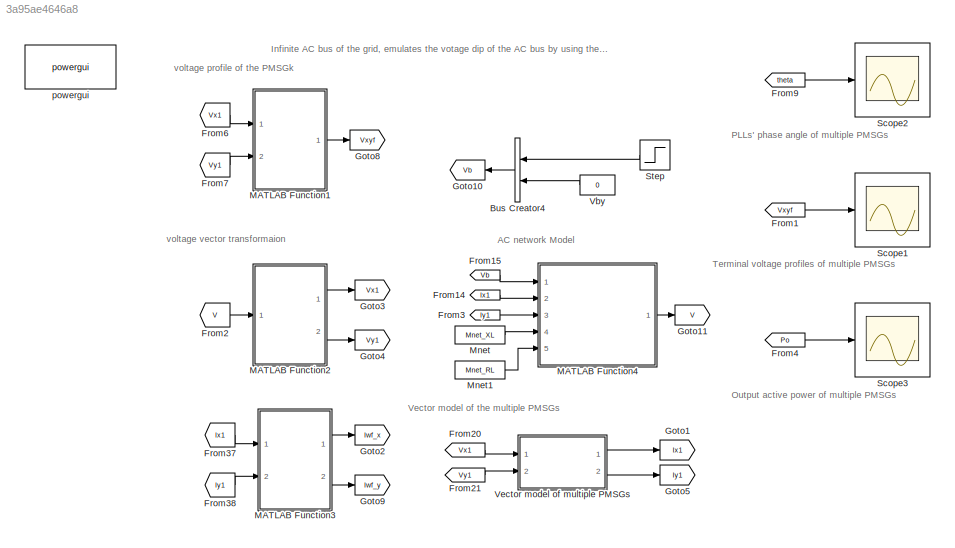
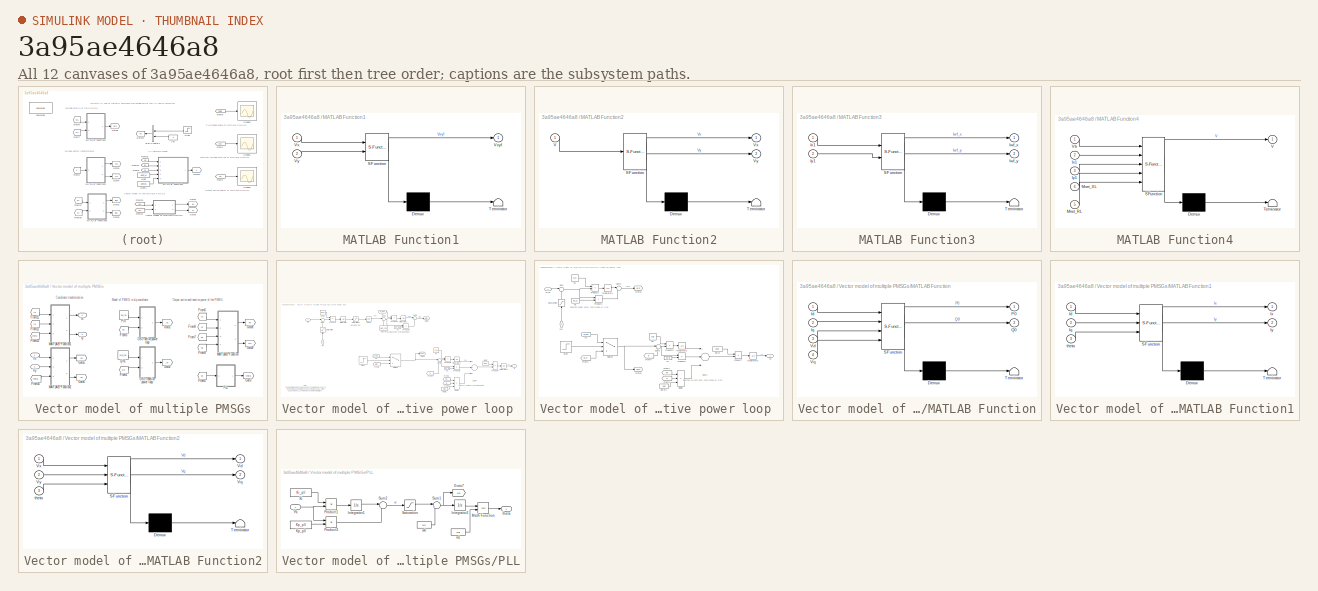
[diagram: thumbnail index - all 12 canvases of the model, root first then tree order]
MODEL slx_3a95ae4646a8
KIND model
CONFIG AbsTol = auto
CONFIG EnableMultiTasking = on
CONFIG FixedStep = auto
CONFIG InitFcn = clear all;clc;\nint5
CONFIG MaxStep = auto
CONFIG MinStep = auto
CONFIG RelTol = 1e-3
CONFIG SampleTimeConstraint = Unconstrained
CONFIG Solver = VariableStepAuto
CONFIG SolverName = VariableStepAuto
CONFIG StartTime = 0.0
CONFIG StopTime = 4
BLOCK [BusCreator] Bus Creator4
  DisplayOption = bar
  InheritFromInputs = on
  Inputs = 2
  Ports = [2, 1]
BLOCK [From] From1
  GotoTag = Vxyf
  TagVisibility = global
BLOCK [From] From14
  GotoTag = Ix1
  TagVisibility = global
BLOCK [From] From15
  GotoTag = Vb
  TagVisibility = global
BLOCK [From] From2
  GotoTag = V
  TagVisibility = global
BLOCK [From] From20
  GotoTag = Vx1
  TagVisibility = global
BLOCK [From] From21
  GotoTag = Vy1
  TagVisibility = global
BLOCK [From] From3
  GotoTag = Iy1
  TagVisibility = global
BLOCK [From] From37
  GotoTag = Ix1
  TagVisibility = global
BLOCK [From] From38
  GotoTag = Iy1
  TagVisibility = global
BLOCK [From] From4
  GotoTag = Po
  TagVisibility = global
BLOCK [From] From6
  GotoTag = Vx1
  TagVisibility = global
BLOCK [From] From7
  GotoTag = Vy1
  TagVisibility = global
BLOCK [From] From9
  GotoTag = theta
  TagVisibility = global
BLOCK [Goto] Goto1
  GotoTag = Ix1
  TagVisibility = global
BLOCK [Goto] Goto10
  GotoTag = Vb
  TagVisibility = global
BLOCK [Goto] Goto11
  GotoTag = V
  TagVisibility = global
BLOCK [Goto] Goto2
  GotoTag = Iwf_x
  TagVisibility = global
BLOCK [Goto] Goto3
  GotoTag = Vx1
  TagVisibility = global
BLOCK [Goto] Goto4
  GotoTag = Vy1
  TagVisibility = global
BLOCK [Goto] Goto5
  GotoTag = Iy1
  TagVisibility = global
BLOCK [Goto] Goto8
  GotoTag = Vxyf
  TagVisibility = global
BLOCK [Goto] Goto9
  GotoTag = Iwf_y
  TagVisibility = global
BLOCK [SubSystem] MATLAB Function1
  ErrorFcn = Stateflow.Translate.translate
  PermitHierarchicalResolution = ExplicitOnly
  Ports = [2, 1]
  RequestExecContextInheritance = off
  SFBlockType = MATLAB Function
  TreatAsAtomicUnit = on
BLOCK [Demux] MATLAB Function1/ Demux 
  Outputs = 1
  Ports = [1, 1]
BLOCK [S-Function] MATLAB Function1/ SFunction 
  EnableBusSupport = on
  FunctionName = sf_sfun
  PortCounts = [2 2]
  Ports = [2, 2]
  SFcnIsStateOwnerBlock = off
  SFunctionDeploymentMode = off
  Tag = Stateflow S-Function Grid_connected_windfarm_multiple_PMSGs 5
BLOCK [Terminator] MATLAB Function1/ Terminator 
BLOCK [Inport] MATLAB Function1/Vx
  IconDisplay = Port number
BLOCK [Outport] MATLAB Function1/Vxyf
  IconDisplay = Port number
BLOCK [Inport] MATLAB Function1/Vy
  IconDisplay = Port number
  Port = 2
BLOCK [SubSystem] MATLAB Function2
  ErrorFcn = Stateflow.Translate.translate
  PermitHierarchicalResolution = ExplicitOnly
  Ports = [1, 2]
  RequestExecContextInheritance = off
  SFBlockType = MATLAB Function
  TreatAsAtomicUnit = on
BLOCK [Demux] MATLAB Function2/ Demux 
  Outputs = 1
  Ports = [1, 1]
BLOCK [S-Function] MATLAB Function2/ SFunction 
  EnableBusSupport = on
  FunctionName = sf_sfun
  PortCounts = [1 3]
  Ports = [1, 3]
  SFcnIsStateOwnerBlock = off
  SFunctionDeploymentMode = off
  Tag = Stateflow S-Function Grid_connected_windfarm_multiple_PMSGs 6
BLOCK [Terminator] MATLAB Function2/ Terminator 
BLOCK [Inport] MATLAB Function2/V
  IconDisplay = Port number
BLOCK [Outport] MATLAB Function2/Vx
  IconDisplay = Port number
BLOCK [Outport] MATLAB Function2/Vy
  IconDisplay = Port number
  Port = 2
BLOCK [SubSystem] MATLAB Function3
  ErrorFcn = Stateflow.Translate.translate
  PermitHierarchicalResolution = ExplicitOnly
  Ports = [2, 2]
  RequestExecContextInheritance = off
  SFBlockType = MATLAB Function
  TreatAsAtomicUnit = on
BLOCK [Demux] MATLAB Function3/ Demux 
  Outputs = 1
  Ports = [1, 1]
BLOCK [S-Function] MATLAB Function3/ SFunction 
  EnableBusSupport = on
  FunctionName = sf_sfun
  PortCounts = [2 3]
  Ports = [2, 3]
  SFcnIsStateOwnerBlock = off
  SFunctionDeploymentMode = off
  Tag = Stateflow S-Function Grid_connected_windfarm_multiple_PMSGs 9
BLOCK [Terminator] MATLAB Function3/ Terminator 
BLOCK [Outport] MATLAB Function3/Iwf_x
  IconDisplay = Port number
BLOCK [Outport] MATLAB Function3/Iwf_y
  IconDisplay = Port number
  Port = 2
BLOCK [Inport] MATLAB Function3/Ix1
  IconDisplay = Port number
BLOCK [Inport] MATLAB Function3/Iy1
  IconDisplay = Port number
  Port = 2
BLOCK [SubSystem] MATLAB Function4
  ErrorFcn = Stateflow.Translate.translate
  PermitHierarchicalResolution = ExplicitOnly
  Ports = [5, 1]
  RequestExecContextInheritance = off
  SFBlockType = MATLAB Function
  TreatAsAtomicUnit = on
BLOCK [Demux] MATLAB Function4/ Demux 
  Outputs = 1
  Ports = [1, 1]
BLOCK [S-Function] MATLAB Function4/ SFunction 
  EnableBusSupport = on
  FunctionName = sf_sfun
  PortCounts = [5 2]
  Ports = [5, 2]
  SFcnIsStateOwnerBlock = off
  SFunctionDeploymentMode = off
  Tag = Stateflow S-Function Grid_connected_windfarm_multiple_PMSGs 7
BLOCK [Terminator] MATLAB Function4/ Terminator 
BLOCK [Inport] MATLAB Function4/Ix1
  IconDisplay = Port number
  Port = 2
BLOCK [Inport] MATLAB Function4/Iy1
  IconDisplay = Port number
  Port = 3
BLOCK [Inport] MATLAB Function4/Mnet_RL
  IconDisplay = Port number
  Port = 5
BLOCK [Inport] MATLAB Function4/Mnet_XL
  IconDisplay = Port number
  Port = 4
BLOCK [Outport] MATLAB Function4/V
  IconDisplay = Port number
BLOCK [Inport] MATLAB Function4/Vb
  IconDisplay = Port number
BLOCK [Constant] Mnet
  Value = Mnet_XL
BLOCK [Constant] Mnet1
  Value = Mnet_RL
BLOCK [Scope] Scope1
  Floating = off
  NumInputPorts = 1
  Ports = [1]
  ScopeSpecificationString = Simulink.scopes.TimeScopeBlockCfg('CurrentConfiguration', extmgr.ConfigurationSet(extmgr.Configuration('Core','General UI',true,'FigureColor',[1 1 1]),extmgr.Configuration('Core','Source UI',true),extmgr.Configuration('Sources','WiredSimulink',true,'DataLoggingMaxPoints','12000','SampleTime','0.0001'),extmgr.Configuration('Visuals','Time Domain',true,'TimeAxisLabels','All','PlotType','Line','Seria...<+3154ch>
BLOCK [Scope] Scope2
  Floating = off
  NumInputPorts = 1
  Ports = [1]
  ScopeSpecificationString = Simulink.scopes.TimeScopeBlockCfg('CurrentConfiguration', extmgr.ConfigurationSet(extmgr.Configuration('Core','General UI',true,'FigureColor',[1 1 1]),extmgr.Configuration('Core','Source UI',true),extmgr.Configuration('Sources','WiredSimulink',true,'DataLoggingVariableName','ScopeData1','DataLoggingMaxPoints','12000','SampleTime','0.0001','DataLogging',true),extmgr.Configuration('Visuals','Time Do...<+3208ch>
BLOCK [Scope] Scope3
  Floating = off
  NumInputPorts = 1
  Ports = [1]
  ScopeSpecificationString = Simulink.scopes.TimeScopeBlockCfg('CurrentConfiguration', extmgr.ConfigurationSet(extmgr.Configuration('Core','General UI',true,'FigureColor',[1 1 1]),extmgr.Configuration('Core','Source UI',true),extmgr.Configuration('Sources','WiredSimulink',true,'DataLoggingMaxPoints','12000','SampleTime','0.0001','DataLoggingVariableName','ScopeData1'),extmgr.Configuration('Visuals','Time Domain',true,'TimeAxi...<+3185ch>
BLOCK [Step] Step
  After = 0.35
  Before = 1
  SampleTime = 0
  Time = 2
BLOCK [Constant] Vby
  Value = 0
BLOCK [SubSystem] Vector model of multiple PMSGs
  Ports = [2, 2]
  RequestExecContextInheritance = off
BLOCK [From] Vector model of multiple PMSGs/From1
  GotoTag = Qo
  TagVisibility = global
BLOCK [From] Vector model of multiple PMSGs/From10
  GotoTag = theta
  TagVisibility = global
BLOCK [From] Vector model of multiple PMSGs/From11
  GotoTag = Id
  TagVisibility = global
BLOCK [From] Vector model of multiple PMSGs/From12
  GotoTag = Iq
  TagVisibility = global
BLOCK [From] Vector model of multiple PMSGs/From13
  GotoTag = theta
  TagVisibility = global
BLOCK [From] Vector model of multiple PMSGs/From3
  GotoTag = Po
  TagVisibility = global
BLOCK [From] Vector model of multiple PMSGs/From5
  GotoTag = Vq
  TagVisibility = global
BLOCK [From] Vector model of multiple PMSGs/From6
  GotoTag = Id
  TagVisibility = global
BLOCK [From] Vector model of multiple PMSGs/From7
  GotoTag = Vd
  TagVisibility = global
BLOCK [From] Vector model of multiple PMSGs/From8
  GotoTag = Iq
  TagVisibility = global
BLOCK [From] Vector model of multiple PMSGs/From9
  GotoTag = Vq
  TagVisibility = global
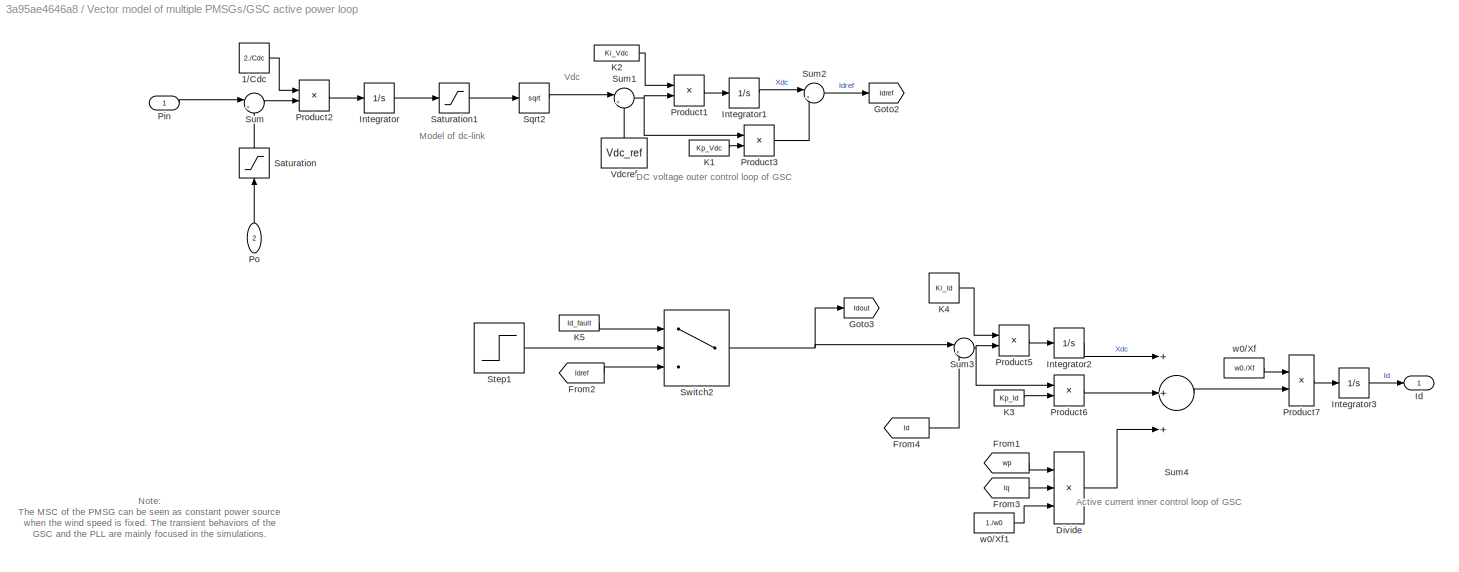
BLOCK [SubSystem] Vector model of multiple PMSGs/GSC active power loop 
  Ports = [2, 1]
  RequestExecContextInheritance = off
BLOCK [Constant] Vector model of multiple PMSGs/GSC active power loop /1//Cdc
  Value = 2./Cdc
BLOCK [Product] Vector model of multiple PMSGs/GSC active power loop /Divide
  InputSameDT = off
  Inputs = ***
  OutDataTypeStr = Inherit: Inherit via internal rule
  Ports = [3, 1]
  RndMeth = Floor
  SaturateOnIntegerOverflow = off
BLOCK [From] Vector model of multiple PMSGs/GSC active power loop /From1
  GotoTag = wp
  TagVisibility = global
BLOCK [From] Vector model of multiple PMSGs/GSC active power loop /From2
  GotoTag = Idref
  TagVisibility = global
BLOCK [From] Vector model of multiple PMSGs/GSC active power loop /From3
  GotoTag = Iq
  TagVisibility = global
BLOCK [From] Vector model of multiple PMSGs/GSC active power loop /From4
  GotoTag = Id
  TagVisibility = global
BLOCK [Goto] Vector model of multiple PMSGs/GSC active power loop /Goto2
  GotoTag = Idref
  TagVisibility = global
BLOCK [Goto] Vector model of multiple PMSGs/GSC active power loop /Goto3
  GotoTag = Idout
  TagVisibility = global
BLOCK [Outport] Vector model of multiple PMSGs/GSC active power loop /Id
  IconDisplay = Port number
BLOCK [Integrator] Vector model of multiple PMSGs/GSC active power loop /Integrator
  InitialCondition = 1
  Ports = [1, 1]
BLOCK [Integrator] Vector model of multiple PMSGs/GSC active power loop /Integrator1
  InitialCondition = 0.02
  Ports = [1, 1]
BLOCK [Integrator] Vector model of multiple PMSGs/GSC active power loop /Integrator2
  Ports = [1, 1]
BLOCK [Integrator] Vector model of multiple PMSGs/GSC active power loop /Integrator3
  InitialCondition = 0.02
  Ports = [1, 1]
BLOCK [Constant] Vector model of multiple PMSGs/GSC active power loop /K1
  Value = Kp_Vdc
BLOCK [Constant] Vector model of multiple PMSGs/GSC active power loop /K2
  Value = Ki_Vdc
BLOCK [Constant] Vector model of multiple PMSGs/GSC active power loop /K3
  Value = Kp_Id
BLOCK [Constant] Vector model of multiple PMSGs/GSC active power loop /K4
  Value = Ki_Id
BLOCK [Constant] Vector model of multiple PMSGs/GSC active power loop /K5
  Value = Id_fault
BLOCK [Inport] Vector model of multiple PMSGs/GSC active power loop /Pin
  IconDisplay = Port number
BLOCK [Inport] Vector model of multiple PMSGs/GSC active power loop /Po
  IconDisplay = Port number
  Port = 2
BLOCK [Product] Vector model of multiple PMSGs/GSC active power loop /Product1
  InputSameDT = off
  OutDataTypeStr = Inherit: Inherit via internal rule
  Ports = [2, 1]
  RndMeth = Floor
  SaturateOnIntegerOverflow = off
BLOCK [Product] Vector model of multiple PMSGs/GSC active power loop /Product2
  InputSameDT = off
  OutDataTypeStr = Inherit: Inherit via internal rule
  Ports = [2, 1]
  RndMeth = Floor
  SaturateOnIntegerOverflow = off
BLOCK [Product] Vector model of multiple PMSGs/GSC active power loop /Product3
  InputSameDT = off
  OutDataTypeStr = Inherit: Inherit via internal rule
  Ports = [2, 1]
  RndMeth = Floor
  SaturateOnIntegerOverflow = off
BLOCK [Product] Vector model of multiple PMSGs/GSC active power loop /Product5
  InputSameDT = off
  OutDataTypeStr = Inherit: Inherit via internal rule
  Ports = [2, 1]
  RndMeth = Floor
  SaturateOnIntegerOverflow = off
BLOCK [Product] Vector model of multiple PMSGs/GSC active power loop /Product6
  InputSameDT = off
  OutDataTypeStr = Inherit: Inherit via internal rule
  Ports = [2, 1]
  RndMeth = Floor
  SaturateOnIntegerOverflow = off
BLOCK [Product] Vector model of multiple PMSGs/GSC active power loop /Product7
  InputSameDT = off
  OutDataTypeStr = Inherit: Inherit via internal rule
  Ports = [2, 1]
  RndMeth = Floor
  SaturateOnIntegerOverflow = off
BLOCK [Saturate] Vector model of multiple PMSGs/GSC active power loop /Saturation
  InputPortMap = u0
  LowerLimit = -1
  Ports = [1, 1]
  UpperLimit = 1
BLOCK [Saturate] Vector model of multiple PMSGs/GSC active power loop /Saturation1
  InputPortMap = u0
  LowerLimit = 0
  Ports = [1, 1]
  UpperLimit = 5
BLOCK [Sqrt] Vector model of multiple PMSGs/GSC active power loop /Sqrt2
BLOCK [Step] Vector model of multiple PMSGs/GSC active power loop /Step1
  SampleTime = 0
  Time = 2
BLOCK [Sum] Vector model of multiple PMSGs/GSC active power loop /Sum
  IconShape = round
  InputSameDT = off
  Inputs = |+-
  OutDataTypeStr = Inherit: Inherit via internal rule
  Ports = [2, 1]
  SaturateOnIntegerOverflow = off
BLOCK [Sum] Vector model of multiple PMSGs/GSC active power loop /Sum1
  IconShape = round
  InputSameDT = off
  Inputs = |+-
  OutDataTypeStr = Inherit: Inherit via internal rule
  Ports = [2, 1]
  SaturateOnIntegerOverflow = off
BLOCK [Sum] Vector model of multiple PMSGs/GSC active power loop /Sum2
  IconShape = round
  InputSameDT = off
  Inputs = |++
  OutDataTypeStr = Inherit: Inherit via internal rule
  Ports = [2, 1]
  SaturateOnIntegerOverflow = off
BLOCK [Sum] Vector model of multiple PMSGs/GSC active power loop /Sum3
  IconShape = round
  InputSameDT = off
  Inputs = |+-
  OutDataTypeStr = Inherit: Inherit via internal rule
  Ports = [2, 1]
  SaturateOnIntegerOverflow = off
BLOCK [Sum] Vector model of multiple PMSGs/GSC active power loop /Sum4
  InputSameDT = off
  Inputs = +++
  OutDataTypeStr = Inherit: Inherit via internal rule
  Ports = [3, 1]
  SaturateOnIntegerOverflow = off
BLOCK [Switch] Vector model of multiple PMSGs/GSC active power loop /Switch2
  Criteria = u2 > Threshold
  InputSameDT = off
  SaturateOnIntegerOverflow = off
  Threshold = 0.5
BLOCK [Constant] Vector model of multiple PMSGs/GSC active power loop /Vdcref
  Value = Vdc_ref
BLOCK [Constant] Vector model of multiple PMSGs/GSC active power loop /w0//Xf
  Value = w0./Xf
BLOCK [Constant] Vector model of multiple PMSGs/GSC active power loop /w0//Xf1
  Value = 1./w0
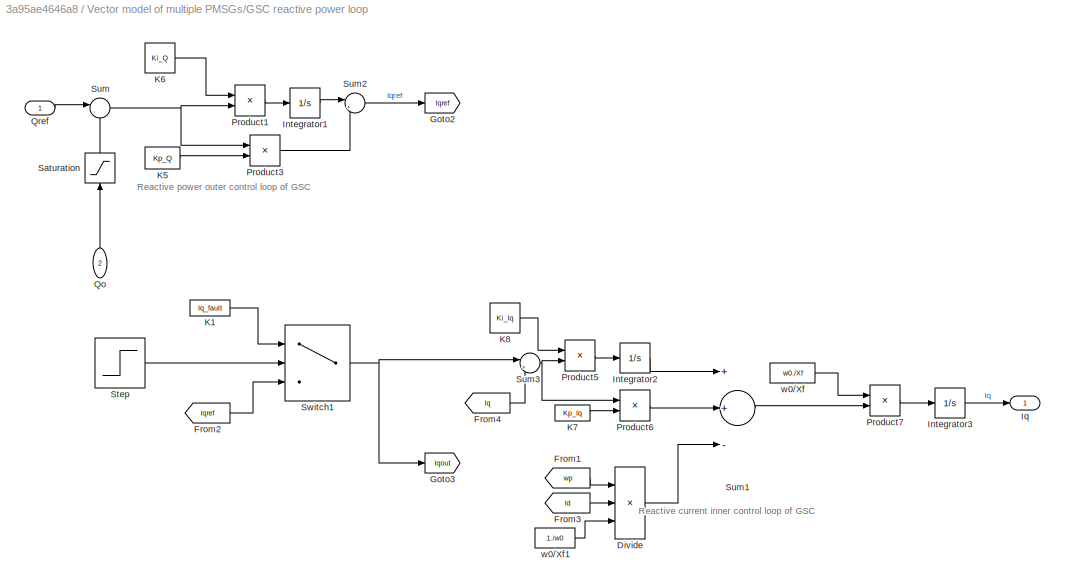
BLOCK [SubSystem] Vector model of multiple PMSGs/GSC reactive power loop 
  Ports = [2, 1]
  RequestExecContextInheritance = off
BLOCK [Product] Vector model of multiple PMSGs/GSC reactive power loop /Divide
  InputSameDT = off
  Inputs = ***
  OutDataTypeStr = Inherit: Inherit via internal rule
  Ports = [3, 1]
  RndMeth = Floor
  SaturateOnIntegerOverflow = off
BLOCK [From] Vector model of multiple PMSGs/GSC reactive power loop /From1
  GotoTag = wp
  TagVisibility = global
BLOCK [From] Vector model of multiple PMSGs/GSC reactive power loop /From2
  GotoTag = Iqref
  TagVisibility = global
BLOCK [From] Vector model of multiple PMSGs/GSC reactive power loop /From3
  GotoTag = Id
  TagVisibility = global
BLOCK [From] Vector model of multiple PMSGs/GSC reactive power loop /From4
  GotoTag = Iq
  TagVisibility = global
BLOCK [Goto] Vector model of multiple PMSGs/GSC reactive power loop /Goto2
  GotoTag = Iqref
  TagVisibility = global
BLOCK [Goto] Vector model of multiple PMSGs/GSC reactive power loop /Goto3
  GotoTag = Iqout
  TagVisibility = global
BLOCK [Integrator] Vector model of multiple PMSGs/GSC reactive power loop /Integrator1
  InitialCondition = -0.005
  Ports = [1, 1]
BLOCK [Integrator] Vector model of multiple PMSGs/GSC reactive power loop /Integrator2
  Ports = [1, 1]
BLOCK [Integrator] Vector model of multiple PMSGs/GSC reactive power loop /Integrator3
  InitialCondition = -0.005
  Ports = [1, 1]
BLOCK [Outport] Vector model of multiple PMSGs/GSC reactive power loop /Iq
  IconDisplay = Port number
BLOCK [Constant] Vector model of multiple PMSGs/GSC reactive power loop /K1
  Value = Iq_fault
BLOCK [Constant] Vector model of multiple PMSGs/GSC reactive power loop /K5
  Value = Kp_Q
BLOCK [Constant] Vector model of multiple PMSGs/GSC reactive power loop /K6
  Value = Ki_Q
BLOCK [Constant] Vector model of multiple PMSGs/GSC reactive power loop /K7
  Value = Kp_Iq
BLOCK [Constant] Vector model of multiple PMSGs/GSC reactive power loop /K8
  Value = Ki_Iq
BLOCK [Product] Vector model of multiple PMSGs/GSC reactive power loop /Product1
  InputSameDT = off
  OutDataTypeStr = Inherit: Inherit via internal rule
  Ports = [2, 1]
  RndMeth = Floor
  SaturateOnIntegerOverflow = off
BLOCK [Product] Vector model of multiple PMSGs/GSC reactive power loop /Product3
  InputSameDT = off
  OutDataTypeStr = Inherit: Inherit via internal rule
  Ports = [2, 1]
  RndMeth = Floor
  SaturateOnIntegerOverflow = off
BLOCK [Product] Vector model of multiple PMSGs/GSC reactive power loop /Product5
  InputSameDT = off
  OutDataTypeStr = Inherit: Inherit via internal rule
  Ports = [2, 1]
  RndMeth = Floor
  SaturateOnIntegerOverflow = off
BLOCK [Product] Vector model of multiple PMSGs/GSC reactive power loop /Product6
  InputSameDT = off
  OutDataTypeStr = Inherit: Inherit via internal rule
  Ports = [2, 1]
  RndMeth = Floor
  SaturateOnIntegerOverflow = off
BLOCK [Product] Vector model of multiple PMSGs/GSC reactive power loop /Product7
  InputSameDT = off
  OutDataTypeStr = Inherit: Inherit via internal rule
  Ports = [2, 1]
  RndMeth = Floor
  SaturateOnIntegerOverflow = off
BLOCK [Inport] Vector model of multiple PMSGs/GSC reactive power loop /Qo
  IconDisplay = Port number
  Port = 2
BLOCK [Inport] Vector model of multiple PMSGs/GSC reactive power loop /Qref
  IconDisplay = Port number
BLOCK [Saturate] Vector model of multiple PMSGs/GSC reactive power loop /Saturation
  InputPortMap = u0
  LowerLimit = -10
  Ports = [1, 1]
  UpperLimit = 10
BLOCK [Step] Vector model of multiple PMSGs/GSC reactive power loop /Step
  SampleTime = 0
  Time = 2
BLOCK [Sum] Vector model of multiple PMSGs/GSC reactive power loop /Sum
  IconShape = round
  InputSameDT = off
  Inputs = |-+
  OutDataTypeStr = Inherit: Inherit via internal rule
  Ports = [2, 1]
  SaturateOnIntegerOverflow = off
BLOCK [Sum] Vector model of multiple PMSGs/GSC reactive power loop /Sum1
  InputSameDT = off
  Inputs = ++-
  OutDataTypeStr = Inherit: Inherit via internal rule
  Ports = [3, 1]
  SaturateOnIntegerOverflow = off
BLOCK [Sum] Vector model of multiple PMSGs/GSC reactive power loop /Sum2
  IconShape = round
  InputSameDT = off
  Inputs = |++
  OutDataTypeStr = Inherit: Inherit via internal rule
  Ports = [2, 1]
  SaturateOnIntegerOverflow = off
BLOCK [Sum] Vector model of multiple PMSGs/GSC reactive power loop /Sum3
  IconShape = round
  InputSameDT = off
  Inputs = |+-
  OutDataTypeStr = Inherit: Inherit via internal rule
  Ports = [2, 1]
  SaturateOnIntegerOverflow = off
BLOCK [Switch] Vector model of multiple PMSGs/GSC reactive power loop /Switch1
  Criteria = u2 > Threshold
  InputSameDT = off
  SaturateOnIntegerOverflow = off
  Threshold = 0.5
BLOCK [Constant] Vector model of multiple PMSGs/GSC reactive power loop /w0//Xf
  Value = w0./Xf
BLOCK [Constant] Vector model of multiple PMSGs/GSC reactive power loop /w0//Xf1
  Value = 1./w0
BLOCK [Goto] Vector model of multiple PMSGs/Goto1
  GotoTag = Id
  TagVisibility = global
BLOCK [Goto] Vector model of multiple PMSGs/Goto2
  GotoTag = Iq
  TagVisibility = global
BLOCK [Goto] Vector model of multiple PMSGs/Goto5
  GotoTag = Vd
  TagVisibility = global
BLOCK [Goto] Vector model of multiple PMSGs/Goto6
  GotoTag = Vq
  TagVisibility = global
BLOCK [Goto] Vector model of multiple PMSGs/Goto7
  GotoTag = theta
  TagVisibility = global
BLOCK [Goto] Vector model of multiple PMSGs/Goto8
  GotoTag = Po
  TagVisibility = global
BLOCK [Goto] Vector model of multiple PMSGs/Goto9
  GotoTag = Qo
  TagVisibility = global
BLOCK [Outport] Vector model of multiple PMSGs/Ix
  IconDisplay = Port number
BLOCK [Outport] Vector model of multiple PMSGs/Iy
  IconDisplay = Port number
  Port = 2
BLOCK [SubSystem] Vector model of multiple PMSGs/MATLAB Function
  ErrorFcn = Stateflow.Translate.translate
  PermitHierarchicalResolution = ExplicitOnly
  Ports = [4, 2]
  RequestExecContextInheritance = off
  SFBlockType = MATLAB Function
  TreatAsAtomicUnit = on
BLOCK [Demux] Vector model of multiple PMSGs/MATLAB Function/ Demux 
  Outputs = 1
  Ports = [1, 1]
BLOCK [S-Function] Vector model of multiple PMSGs/MATLAB Function/ SFunction 
  EnableBusSupport = on
  FunctionName = sf_sfun
  PortCounts = [4 3]
  Ports = [4, 3]
  SFcnIsStateOwnerBlock = off
  SFunctionDeploymentMode = off
  Tag = Stateflow S-Function Grid_connected_windfarm_multiple_PMSGs 1
BLOCK [Terminator] Vector model of multiple PMSGs/MATLAB Function/ Terminator 
BLOCK [Inport] Vector model of multiple PMSGs/MATLAB Function/Id
  IconDisplay = Port number
BLOCK [Inport] Vector model of multiple PMSGs/MATLAB Function/Iq
  IconDisplay = Port number
  Port = 2
BLOCK [Outport] Vector model of multiple PMSGs/MATLAB Function/P0
  IconDisplay = Port number
BLOCK [Outport] Vector model of multiple PMSGs/MATLAB Function/Q0
  IconDisplay = Port number
  Port = 2
BLOCK [Inport] Vector model of multiple PMSGs/MATLAB Function/Vd
  IconDisplay = Port number
  Port = 3
BLOCK [Inport] Vector model of multiple PMSGs/MATLAB Function/Vq
  IconDisplay = Port number
  Port = 4
BLOCK [SubSystem] Vector model of multiple PMSGs/MATLAB Function1
  ErrorFcn = Stateflow.Translate.translate
  PermitHierarchicalResolution = ExplicitOnly
  Ports = [3, 2]
  RequestExecContextInheritance = off
  SFBlockType = MATLAB Function
  TreatAsAtomicUnit = on
BLOCK [Demux] Vector model of multiple PMSGs/MATLAB Function1/ Demux 
  Outputs = 1
  Ports = [1, 1]
BLOCK [S-Function] Vector model of multiple PMSGs/MATLAB Function1/ SFunction 
  EnableBusSupport = on
  FunctionName = sf_sfun
  PortCounts = [3 3]
  Ports = [3, 3]
  SFcnIsStateOwnerBlock = off
  SFunctionDeploymentMode = off
  Tag = Stateflow S-Function Grid_connected_windfarm_multiple_PMSGs 3
BLOCK [Terminator] Vector model of multiple PMSGs/MATLAB Function1/ Terminator 
BLOCK [Inport] Vector model of multiple PMSGs/MATLAB Function1/Id
  IconDisplay = Port number
BLOCK [Inport] Vector model of multiple PMSGs/MATLAB Function1/Iq
  IconDisplay = Port number
  Port = 2
BLOCK [Outport] Vector model of multiple PMSGs/MATLAB Function1/Ix
  IconDisplay = Port number
BLOCK [Outport] Vector model of multiple PMSGs/MATLAB Function1/Iy
  IconDisplay = Port number
  Port = 2
BLOCK [Inport] Vector model of multiple PMSGs/MATLAB Function1/theta
  IconDisplay = Port number
  Port = 3
BLOCK [SubSystem] Vector model of multiple PMSGs/MATLAB Function2
  ErrorFcn = Stateflow.Translate.translate
  PermitHierarchicalResolution = ExplicitOnly
  Ports = [3, 2]
  RequestExecContextInheritance = off
  SFBlockType = MATLAB Function
  TreatAsAtomicUnit = on
BLOCK [Demux] Vector model of multiple PMSGs/MATLAB Function2/ Demux 
  Outputs = 1
  Ports = [1, 1]
BLOCK [S-Function] Vector model of multiple PMSGs/MATLAB Function2/ SFunction 
  EnableBusSupport = on
  FunctionName = sf_sfun
  PortCounts = [3 3]
  Ports = [3, 3]
  SFcnIsStateOwnerBlock = off
  SFunctionDeploymentMode = off
  Tag = Stateflow S-Function Grid_connected_windfarm_multiple_PMSGs 4
BLOCK [Terminator] Vector model of multiple PMSGs/MATLAB Function2/ Terminator 
BLOCK [Outport] Vector model of multiple PMSGs/MATLAB Function2/Vd
  IconDisplay = Port number
BLOCK [Outport] Vector model of multiple PMSGs/MATLAB Function2/Vq
  IconDisplay = Port number
  Port = 2
BLOCK [Inport] Vector model of multiple PMSGs/MATLAB Function2/Vx
  IconDisplay = Port number
BLOCK [Inport] Vector model of multiple PMSGs/MATLAB Function2/Vy
  IconDisplay = Port number
  Port = 2
BLOCK [Inport] Vector model of multiple PMSGs/MATLAB Function2/theta
  IconDisplay = Port number
  Port = 3
BLOCK [SubSystem] Vector model of multiple PMSGs/PLL
  Ports = [1, 1]
  RequestExecContextInheritance = off
BLOCK [Goto] Vector model of multiple PMSGs/PLL/Goto7
  GotoTag = wp
  TagVisibility = global
BLOCK [Integrator] Vector model of multiple PMSGs/PLL/Integrator1
  InitialCondition = 2*pi*50
  Ports = [1, 1]
BLOCK [Integrator] Vector model of multiple PMSGs/PLL/Integrator2
  InitialCondition = 0.9
  Ports = [1, 1]
BLOCK [Constant] Vector model of multiple PMSGs/PLL/Ki
  Value = Ki_pll
BLOCK [Constant] Vector model of multiple PMSGs/PLL/Kp_pll
  Value = Kp_pll
BLOCK [Math] Vector model of multiple PMSGs/PLL/Math Function
  Operator = rem
  Ports = [2, 1]
BLOCK [Product] Vector model of multiple PMSGs/PLL/Product1
  InputSameDT = off
  OutDataTypeStr = Inherit: Inherit via internal rule
  Ports = [2, 1]
  RndMeth = Floor
  SaturateOnIntegerOverflow = off
BLOCK [Product] Vector model of multiple PMSGs/PLL/Product3
  InputSameDT = off
  OutDataTypeStr = Inherit: Inherit via internal rule
  Ports = [2, 1]
  RndMeth = Floor
  SaturateOnIntegerOverflow = off
BLOCK [Saturate] Vector model of multiple PMSGs/PLL/Saturation
  InputPortMap = u0
  LowerLimit = w0*0.8
  Ports = [1, 1]
  UpperLimit = w0*1.2
BLOCK [Sum] Vector model of multiple PMSGs/PLL/Sum1
  IconShape = round
  InputSameDT = off
  Inputs = |+-
  OutDataTypeStr = Inherit: Inherit via internal rule
  Ports = [2, 1]
  SaturateOnIntegerOverflow = off
BLOCK [Sum] Vector model of multiple PMSGs/PLL/Sum2
  IconShape = round
  InputSameDT = off
  Inputs = |++
  OutDataTypeStr = Inherit: Inherit via internal rule
  Ports = [2, 1]
  SaturateOnIntegerOverflow = off
BLOCK [Inport] Vector model of multiple PMSGs/PLL/Vq
  IconDisplay = Port number
BLOCK [Outport] Vector model of multiple PMSGs/PLL/theta
  IconDisplay = Port number
BLOCK [Constant] Vector model of multiple PMSGs/PLL/w0
  Value = w0
BLOCK [Constant] Vector model of multiple PMSGs/PLL/w1
  Value = 2*pi
BLOCK [Constant] Vector model of multiple PMSGs/Pin
  Value = Po_ref
BLOCK [Constant] Vector model of multiple PMSGs/Qin1
  Value = Qo_ref
BLOCK [Inport] Vector model of multiple PMSGs/Vx
  IconDisplay = Port number
BLOCK [Inport] Vector model of multiple PMSGs/Vy
  IconDisplay = Port number
  Port = 2
BLOCK [Reference] powergui  REF=powerlib/powergui
  Ports = []
  Priority = 1
  SourceBlock = powerlib/powergui
  SourceProductBaseCode = PS
  SourceProductName = Simscape Electrical
  SourceType = PSB option menu block
ANNOTATION (root): AC network Model
ANNOTATION (root): Infinite AC bus of the grid, emulates the votage dip of the AC bus by using the step module
ANNOTATION (root): Output active power of multiple PMSGs
ANNOTATION (root): PLLs' phase angle of multiple PMSGs
ANNOTATION (root): Terminal voltage profiles of multiple PMSGs
ANNOTATION (root): Vector model of the multiple PMSGs
ANNOTATION (root): voltage profile of the PMSGk
ANNOTATION (root): voltage vector transformaion
ANNOTATION Vector model of multiple PMSGs: Coordinate transformation
ANNOTATION Vector model of multiple PMSGs: Model of PMSG in d-q coordinate
ANNOTATION Vector model of multiple PMSGs: Output active and reactive power of the PMSG
ANNOTATION Vector model of multiple PMSGs/GSC active power loop : DC voltage outer control loop of GSC
ANNOTATION Vector model of multiple PMSGs/GSC active power loop : Active current inner control loop of GSC
ANNOTATION Vector model of multiple PMSGs/GSC active power loop : Note: The MSC of the PMSG can be seen as constant power source when the wind speed is fixed. The transient behaviors of the GSC and the PLL are mainly focused in the simulations.
ANNOTATION Vector model of multiple PMSGs/GSC active power loop : Model of dc-link
ANNOTATION Vector model of multiple PMSGs/GSC active power loop : Vdc
ANNOTATION Vector model of multiple PMSGs/GSC reactive power loop : Reactive power outer control loop of GSC
ANNOTATION Vector model of multiple PMSGs/GSC reactive power loop : Reactive current inner control loop of GSC
LINE Bus Creator4:1 -> Goto10:1
LINE From14:1 -> MATLAB Function4:2
LINE From15:1 -> MATLAB Function4:1
LINE From1:1 -> Scope1:1
LINE From20:1 -> Vector model of multiple PMSGs:1
LINE From21:1 -> Vector model of multiple PMSGs:2
LINE From2:1 -> MATLAB Function2:1
LINE From37:1 -> MATLAB Function3:1
LINE From38:1 -> MATLAB Function3:2
LINE From3:1 -> MATLAB Function4:3
LINE From4:1 -> Scope3:1
LINE From6:1 -> MATLAB Function1:1
LINE From7:1 -> MATLAB Function1:2
LINE From9:1 -> Scope2:1
LINE MATLAB Function1:1 -> Goto8:1
LINE MATLAB Function2:1 -> Goto3:1
LINE MATLAB Function2:2 -> Goto4:1
LINE MATLAB Function3:1 -> Goto2:1
LINE MATLAB Function3:2 -> Goto9:1
LINE MATLAB Function4:1 -> Goto11:1
LINE Mnet1:1 -> MATLAB Function4:5
LINE Mnet:1 -> MATLAB Function4:4
LINE Step:1 -> Bus Creator4:1
LINE Vby:1 -> Bus Creator4:2
LINE Vector model of multiple PMSGs/From10:1 -> Vector model of multiple PMSGs/MATLAB Function2:3
LINE Vector model of multiple PMSGs/From11:1 -> Vector model of multiple PMSGs/MATLAB Function1:1
LINE Vector model of multiple PMSGs/From12:1 -> Vector model of multiple PMSGs/MATLAB Function1:2
LINE Vector model of multiple PMSGs/From13:1 -> Vector model of multiple PMSGs/MATLAB Function1:3
LINE Vector model of multiple PMSGs/From1:1 -> Vector model of multiple PMSGs/GSC reactive power loop :2
LINE Vector model of multiple PMSGs/From3:1 -> Vector model of multiple PMSGs/GSC active power loop :2
LINE Vector model of multiple PMSGs/From5:1 -> Vector model of multiple PMSGs/PLL:1
LINE Vector model of multiple PMSGs/From6:1 -> Vector model of multiple PMSGs/MATLAB Function:1
LINE Vector model of multiple PMSGs/From7:1 -> Vector model of multiple PMSGs/MATLAB Function:3
LINE Vector model of multiple PMSGs/From8:1 -> Vector model of multiple PMSGs/MATLAB Function:2
LINE Vector model of multiple PMSGs/From9:1 -> Vector model of multiple PMSGs/MATLAB Function:4
LINE Vector model of multiple PMSGs/GSC active power loop /1//Cdc:1 -> Vector model of multiple PMSGs/GSC active power loop /Product2:1
LINE Vector model of multiple PMSGs/GSC active power loop /Divide:1 -> Vector model of multiple PMSGs/GSC active power loop /Sum4:3
LINE Vector model of multiple PMSGs/GSC active power loop /From1:1 -> Vector model of multiple PMSGs/GSC active power loop /Divide:1
LINE Vector model of multiple PMSGs/GSC active power loop /From2:1 -> Vector model of multiple PMSGs/GSC active power loop /Switch2:3
LINE Vector model of multiple PMSGs/GSC active power loop /From3:1 -> Vector model of multiple PMSGs/GSC active power loop /Divide:2
LINE Vector model of multiple PMSGs/GSC active power loop /From4:1 -> Vector model of multiple PMSGs/GSC active power loop /Sum3:2
LINE Vector model of multiple PMSGs/GSC active power loop /Integrator1:1 -> Vector model of multiple PMSGs/GSC active power loop /Sum2:1
LINE Vector model of multiple PMSGs/GSC active power loop /Integrator2:1 -> Vector model of multiple PMSGs/GSC active power loop /Sum4:1
LINE Vector model of multiple PMSGs/GSC active power loop /Integrator3:1 -> Vector model of multiple PMSGs/GSC active power loop /Id:1
LINE Vector model of multiple PMSGs/GSC active power loop /Integrator:1 -> Vector model of multiple PMSGs/GSC active power loop /Saturation1:1
LINE Vector model of multiple PMSGs/GSC active power loop /K1:1 -> Vector model of multiple PMSGs/GSC active power loop /Product3:2
LINE Vector model of multiple PMSGs/GSC active power loop /K2:1 -> Vector model of multiple PMSGs/GSC active power loop /Product1:1
LINE Vector model of multiple PMSGs/GSC active power loop /K3:1 -> Vector model of multiple PMSGs/GSC active power loop /Product6:2
LINE Vector model of multiple PMSGs/GSC active power loop /K4:1 -> Vector model of multiple PMSGs/GSC active power loop /Product5:1
LINE Vector model of multiple PMSGs/GSC active power loop /K5:1 -> Vector model of multiple PMSGs/GSC active power loop /Switch2:1
LINE Vector model of multiple PMSGs/GSC active power loop /Pin:1 -> Vector model of multiple PMSGs/GSC active power loop /Sum:1
LINE Vector model of multiple PMSGs/GSC active power loop /Po:1 -> Vector model of multiple PMSGs/GSC active power loop /Saturation:1
LINE Vector model of multiple PMSGs/GSC active power loop /Product1:1 -> Vector model of multiple PMSGs/GSC active power loop /Integrator1:1
LINE Vector model of multiple PMSGs/GSC active power loop /Product2:1 -> Vector model of multiple PMSGs/GSC active power loop /Integrator:1
LINE Vector model of multiple PMSGs/GSC active power loop /Product3:1 -> Vector model of multiple PMSGs/GSC active power loop /Sum2:2
LINE Vector model of multiple PMSGs/GSC active power loop /Product5:1 -> Vector model of multiple PMSGs/GSC active power loop /Integrator2:1
LINE Vector model of multiple PMSGs/GSC active power loop /Product6:1 -> Vector model of multiple PMSGs/GSC active power loop /Sum4:2
LINE Vector model of multiple PMSGs/GSC active power loop /Product7:1 -> Vector model of multiple PMSGs/GSC active power loop /Integrator3:1
LINE Vector model of multiple PMSGs/GSC active power loop /Saturation1:1 -> Vector model of multiple PMSGs/GSC active power loop /Sqrt2:1
LINE Vector model of multiple PMSGs/GSC active power loop /Saturation:1 -> Vector model of multiple PMSGs/GSC active power loop /Sum:2
LINE Vector model of multiple PMSGs/GSC active power loop /Sqrt2:1 -> Vector model of multiple PMSGs/GSC active power loop /Sum1:1
LINE Vector model of multiple PMSGs/GSC active power loop /Step1:1 -> Vector model of multiple PMSGs/GSC active power loop /Switch2:2
NET Vector model of multiple PMSGs/GSC active power loop /Sum1:1 -> Vector model of multiple PMSGs/GSC active power loop /Product1:2, Vector model of multiple PMSGs/GSC active power loop /Product3:1
LINE Vector model of multiple PMSGs/GSC active power loop /Sum2:1 -> Vector model of multiple PMSGs/GSC active power loop /Goto2:1
NET Vector model of multiple PMSGs/GSC active power loop /Sum3:1 -> Vector model of multiple PMSGs/GSC active power loop /Product5:2, Vector model of multiple PMSGs/GSC active power loop /Product6:1
LINE Vector model of multiple PMSGs/GSC active power loop /Sum4:1 -> Vector model of multiple PMSGs/GSC active power loop /Product7:2
LINE Vector model of multiple PMSGs/GSC active power loop /Sum:1 -> Vector model of multiple PMSGs/GSC active power loop /Product2:2
NET Vector model of multiple PMSGs/GSC active power loop /Switch2:1 -> Vector model of multiple PMSGs/GSC active power loop /Goto3:1, Vector model of multiple PMSGs/GSC active power loop /Sum3:1
LINE Vector model of multiple PMSGs/GSC active power loop /Vdcref:1 -> Vector model of multiple PMSGs/GSC active power loop /Sum1:2
LINE Vector model of multiple PMSGs/GSC active power loop /w0//Xf1:1 -> Vector model of multiple PMSGs/GSC active power loop /Divide:3
LINE Vector model of multiple PMSGs/GSC active power loop /w0//Xf:1 -> Vector model of multiple PMSGs/GSC active power loop /Product7:1
LINE Vector model of multiple PMSGs/GSC active power loop :1 -> Vector model of multiple PMSGs/Goto1:1
LINE Vector model of multiple PMSGs/GSC reactive power loop /Divide:1 -> Vector model of multiple PMSGs/GSC reactive power loop /Sum1:3
LINE Vector model of multiple PMSGs/GSC reactive power loop /From1:1 -> Vector model of multiple PMSGs/GSC reactive power loop /Divide:1
LINE Vector model of multiple PMSGs/GSC reactive power loop /From2:1 -> Vector model of multiple PMSGs/GSC reactive power loop /Switch1:3
LINE Vector model of multiple PMSGs/GSC reactive power loop /From3:1 -> Vector model of multiple PMSGs/GSC reactive power loop /Divide:2
LINE Vector model of multiple PMSGs/GSC reactive power loop /From4:1 -> Vector model of multiple PMSGs/GSC reactive power loop /Sum3:2
LINE Vector model of multiple PMSGs/GSC reactive power loop /Integrator1:1 -> Vector model of multiple PMSGs/GSC reactive power loop /Sum2:1
LINE Vector model of multiple PMSGs/GSC reactive power loop /Integrator2:1 -> Vector model of multiple PMSGs/GSC reactive power loop /Sum1:1
LINE Vector model of multiple PMSGs/GSC reactive power loop /Integrator3:1 -> Vector model of multiple PMSGs/GSC reactive power loop /Iq:1
LINE Vector model of multiple PMSGs/GSC reactive power loop /K1:1 -> Vector model of multiple PMSGs/GSC reactive power loop /Switch1:1
LINE Vector model of multiple PMSGs/GSC reactive power loop /K5:1 -> Vector model of multiple PMSGs/GSC reactive power loop /Product3:2
LINE Vector model of multiple PMSGs/GSC reactive power loop /K6:1 -> Vector model of multiple PMSGs/GSC reactive power loop /Product1:1
LINE Vector model of multiple PMSGs/GSC reactive power loop /K7:1 -> Vector model of multiple PMSGs/GSC reactive power loop /Product6:2
LINE Vector model of multiple PMSGs/GSC reactive power loop /K8:1 -> Vector model of multiple PMSGs/GSC reactive power loop /Product5:1
LINE Vector model of multiple PMSGs/GSC reactive power loop /Product1:1 -> Vector model of multiple PMSGs/GSC reactive power loop /Integrator1:1
LINE Vector model of multiple PMSGs/GSC reactive power loop /Product3:1 -> Vector model of multiple PMSGs/GSC reactive power loop /Sum2:2
LINE Vector model of multiple PMSGs/GSC reactive power loop /Product5:1 -> Vector model of multiple PMSGs/GSC reactive power loop /Integrator2:1
LINE Vector model of multiple PMSGs/GSC reactive power loop /Product6:1 -> Vector model of multiple PMSGs/GSC reactive power loop /Sum1:2
LINE Vector model of multiple PMSGs/GSC reactive power loop /Product7:1 -> Vector model of multiple PMSGs/GSC reactive power loop /Integrator3:1
LINE Vector model of multiple PMSGs/GSC reactive power loop /Qo:1 -> Vector model of multiple PMSGs/GSC reactive power loop /Saturation:1
LINE Vector model of multiple PMSGs/GSC reactive power loop /Qref:1 -> Vector model of multiple PMSGs/GSC reactive power loop /Sum:1
LINE Vector model of multiple PMSGs/GSC reactive power loop /Saturation:1 -> Vector model of multiple PMSGs/GSC reactive power loop /Sum:2
LINE Vector model of multiple PMSGs/GSC reactive power loop /Step:1 -> Vector model of multiple PMSGs/GSC reactive power loop /Switch1:2
LINE Vector model of multiple PMSGs/GSC reactive power loop /Sum1:1 -> Vector model of multiple PMSGs/GSC reactive power loop /Product7:2
LINE Vector model of multiple PMSGs/GSC reactive power loop /Sum2:1 -> Vector model of multiple PMSGs/GSC reactive power loop /Goto2:1
NET Vector model of multiple PMSGs/GSC reactive power loop /Sum3:1 -> Vector model of multiple PMSGs/GSC reactive power loop /Product5:2, Vector model of multiple PMSGs/GSC reactive power loop /Product6:1
NET Vector model of multiple PMSGs/GSC reactive power loop /Sum:1 -> Vector model of multiple PMSGs/GSC reactive power loop /Product1:2, Vector model of multiple PMSGs/GSC reactive power loop /Product3:1
NET Vector model of multiple PMSGs/GSC reactive power loop /Switch1:1 -> Vector model of multiple PMSGs/GSC reactive power loop /Goto3:1, Vector model of multiple PMSGs/GSC reactive power loop /Sum3:1
LINE Vector model of multiple PMSGs/GSC reactive power loop /w0//Xf1:1 -> Vector model of multiple PMSGs/GSC reactive power loop /Divide:3
LINE Vector model of multiple PMSGs/GSC reactive power loop /w0//Xf:1 -> Vector model of multiple PMSGs/GSC reactive power loop /Product7:1
LINE Vector model of multiple PMSGs/GSC reactive power loop :1 -> Vector model of multiple PMSGs/Goto2:1
LINE Vector model of multiple PMSGs/MATLAB Function1:1 -> Vector model of multiple PMSGs/Ix:1
LINE Vector model of multiple PMSGs/MATLAB Function1:2 -> Vector model of multiple PMSGs/Iy:1
LINE Vector model of multiple PMSGs/MATLAB Function2:1 -> Vector model of multiple PMSGs/Goto5:1
LINE Vector model of multiple PMSGs/MATLAB Function2:2 -> Vector model of multiple PMSGs/Goto6:1
LINE Vector model of multiple PMSGs/MATLAB Function:1 -> Vector model of multiple PMSGs/Goto8:1
LINE Vector model of multiple PMSGs/MATLAB Function:2 -> Vector model of multiple PMSGs/Goto9:1
LINE Vector model of multiple PMSGs/PLL/Integrator1:1 -> Vector model of multiple PMSGs/PLL/Sum2:1
LINE Vector model of multiple PMSGs/PLL/Integrator2:1 -> Vector model of multiple PMSGs/PLL/Math Function:1
LINE Vector model of multiple PMSGs/PLL/Ki:1 -> Vector model of multiple PMSGs/PLL/Product1:1
LINE Vector model of multiple PMSGs/PLL/Kp_pll:1 -> Vector model of multiple PMSGs/PLL/Product3:2
LINE Vector model of multiple PMSGs/PLL/Math Function:1 -> Vector model of multiple PMSGs/PLL/theta:1
LINE Vector model of multiple PMSGs/PLL/Product1:1 -> Vector model of multiple PMSGs/PLL/Integrator1:1
LINE Vector model of multiple PMSGs/PLL/Product3:1 -> Vector model of multiple PMSGs/PLL/Sum2:2
LINE Vector model of multiple PMSGs/PLL/Saturation:1 -> Vector model of multiple PMSGs/PLL/Sum1:1
NET Vector model of multiple PMSGs/PLL/Sum1:1 -> Vector model of multiple PMSGs/PLL/Goto7:1, Vector model of multiple PMSGs/PLL/Integrator2:1
LINE Vector model of multiple PMSGs/PLL/Sum2:1 -> Vector model of multiple PMSGs/PLL/Saturation:1
NET Vector model of multiple PMSGs/PLL/Vq:1 -> Vector model of multiple PMSGs/PLL/Product1:2, Vector model of multiple PMSGs/PLL/Product3:1
LINE Vector model of multiple PMSGs/PLL/w0:1 -> Vector model of multiple PMSGs/PLL/Sum1:2
LINE Vector model of multiple PMSGs/PLL/w1:1 -> Vector model of multiple PMSGs/PLL/Math Function:2
LINE Vector model of multiple PMSGs/PLL:1 -> Vector model of multiple PMSGs/Goto7:1
LINE Vector model of multiple PMSGs/Pin:1 -> Vector model of multiple PMSGs/GSC active power loop :1
LINE Vector model of multiple PMSGs/Qin1:1 -> Vector model of multiple PMSGs/GSC reactive power loop :1
LINE Vector model of multiple PMSGs/Vx:1 -> Vector model of multiple PMSGs/MATLAB Function2:1
LINE Vector model of multiple PMSGs/Vy:1 -> Vector model of multiple PMSGs/MATLAB Function2:2
LINE Vector model of multiple PMSGs:1 -> Goto1:1
LINE Vector model of multiple PMSGs:2 -> Goto5:1
note: NET lines group one-source signal fan-out (src -> all destinations, sorted); 1:1 wires keep LINE
CHART Vector model of multiple PMSGs/MATLAB Function states=1 transitions=1
  STATE_LABEL 'eML_blk_kernel()'
  STATE_LABEL 'SCRIPT:\nfunction [P0,Q0] = power(Id,Iq,Vd,Vq)\n%% PMSG输出有功\nP0=Id.*Vd+Iq.*Vq;\n%% PMSG输出无功\nQ0=Id.*Vq-Iq.*Vd;\n'
CHART Vector model of multiple PMSGs/MATLAB Function1 states=1 transitions=1
  STATE_LABEL 'eML_blk_kernel()'
  STATE_LABEL 'SCRIPT:\nfunction [Ix,Iy] = Rdq_xy(Id,Iq,theta)\n%% \nIx=Id.*cos(theta)-Iq.*sin(theta);\nIy=Id.*sin(theta)+Iq.*cos(theta);\n'
CHART Vector model of multiple PMSGs/MATLAB Function2 states=1 transitions=1
  STATE_LABEL 'eML_blk_kernel()'
  STATE_LABEL 'SCRIPT:\nfunction [Vd,Vq] = Rxy_dc(Vx,Vy,theta)\n%% \nVd=Vx.*cos(theta)+Vy.*sin(theta);\nVq=-Vx.*sin(theta)+Vy.*cos(theta);\n'
CHART MATLAB Function1 states=1 transitions=1
  STATE_LABEL 'eML_blk_kernel()'
  STATE_LABEL 'SCRIPT:\nfunction Vxyf = mag_V(Vx,Vy)\nVxyf=sqrt(Vx.^2+Vy.^2);% calculate the amplitude of the terminal voltage of kth PMSG\n\n'
CHART MATLAB Function2 states=1 transitions=1
  STATE_LABEL 'eML_blk_kernel()'
  STATE_LABEL 'SCRIPT:\nfunction [Vx,Vy] = voltage(V)\nN=0.5*length(V);% N represnets the number of the PMSGs in the wind farm\n%% Vx Vy initialization\nVx=zeros(N,1);\nVy=zeros(N,1);\n%% Generate Vx vector and Vy vector from the voltage vector V；\n% V=[Vx1;Vy1;Vx2;Vy2 ... VxN;VyN];\n% Vx=[Vx1;Vx2 ... VxN];Vy=[Vy1;Vy2 ... VyN];\nfor k=1:N\n    Vx(k)=V(2*k-1);\n    Vy(k)=V(2*k);\nend\n\n'
CHART MATLAB Function4 states=1 transitions=1
  STATE_LABEL 'eML_blk_kernel()'
  STATE_LABEL 'SCRIPT:\nfunction V = WF_Net(Vb,Ix1,Iy1,Mnet_XL,Mnet_RL)\nI1=[Ix1;Iy1];\n%% Initialization\nH1=[0 -1;1 0];H2=[1 0;0 1];% \nM=kron(Mnet_XL,H1)+kron(Mnet_RL,H2);% M is 2N*2N network matrix\n%% terminal voltage and current relationship of PMSG；Vb=[Vbx;0] is the voltage bus of the AC grid.\nN=length(Ix1);% N is the number of the PMSGs in wind farm\nVb_2N=zeros(2*N,1);% Initialization\nI=zeros(2*N,1);\n%% Vb_2N=...<+173ch>'
CHART MATLAB Function3 states=1 transitions=1
  STATE_LABEL 'eML_blk_kernel()'
  STATE_LABEL 'SCRIPT:\nfunction [Iwf_x,Iwf_y] = mag_V(Ix1,Iy1)\nN=0.5*length(Ix1);% 风机台数N\n%% Ix Vy初始化\nIwf_x=0;\nIwf_y=0;\nfor k=1:N\n    Iwf_x=Iwf_x+Ix1(k);\n    Iwf_y=Iwf_y+Iy1(k);\nend\n\n'
